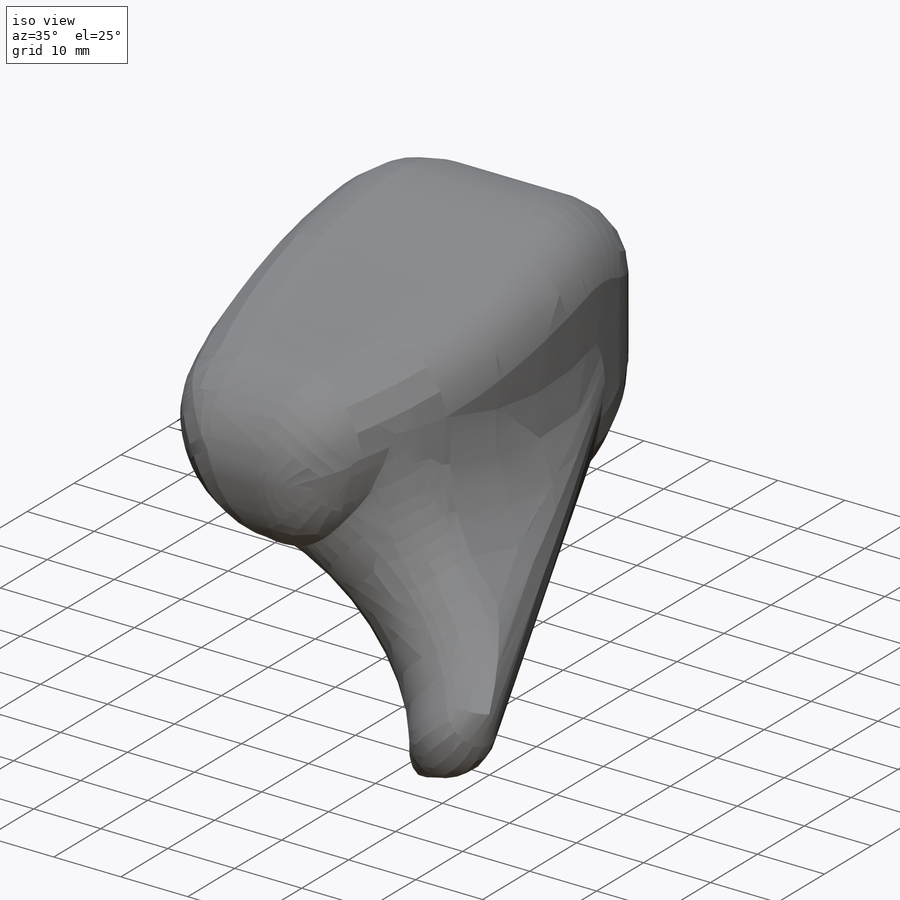
[diagram: iso view]
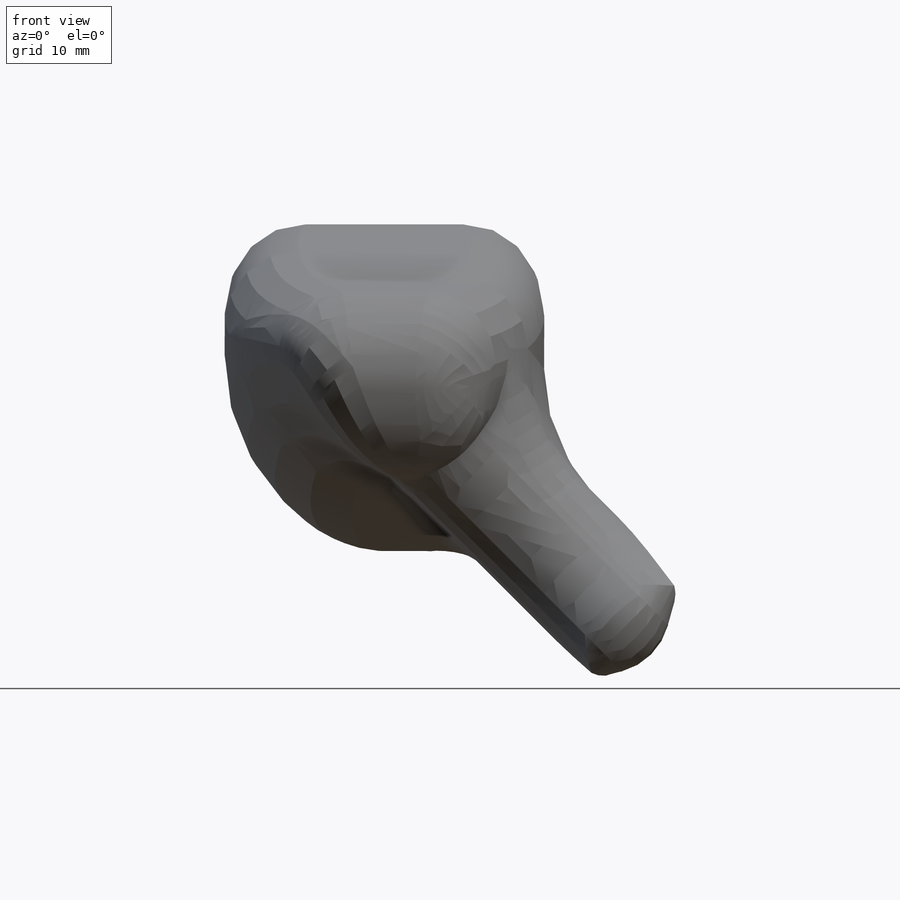
[diagram: front view]
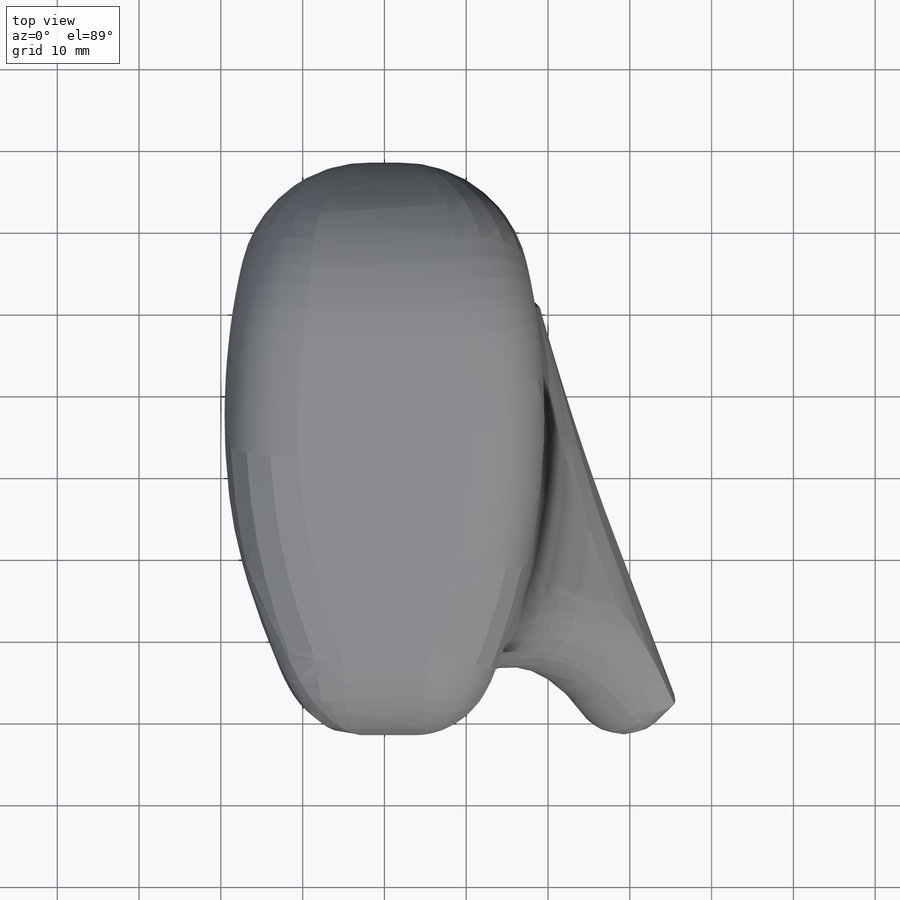
[diagram: top view]
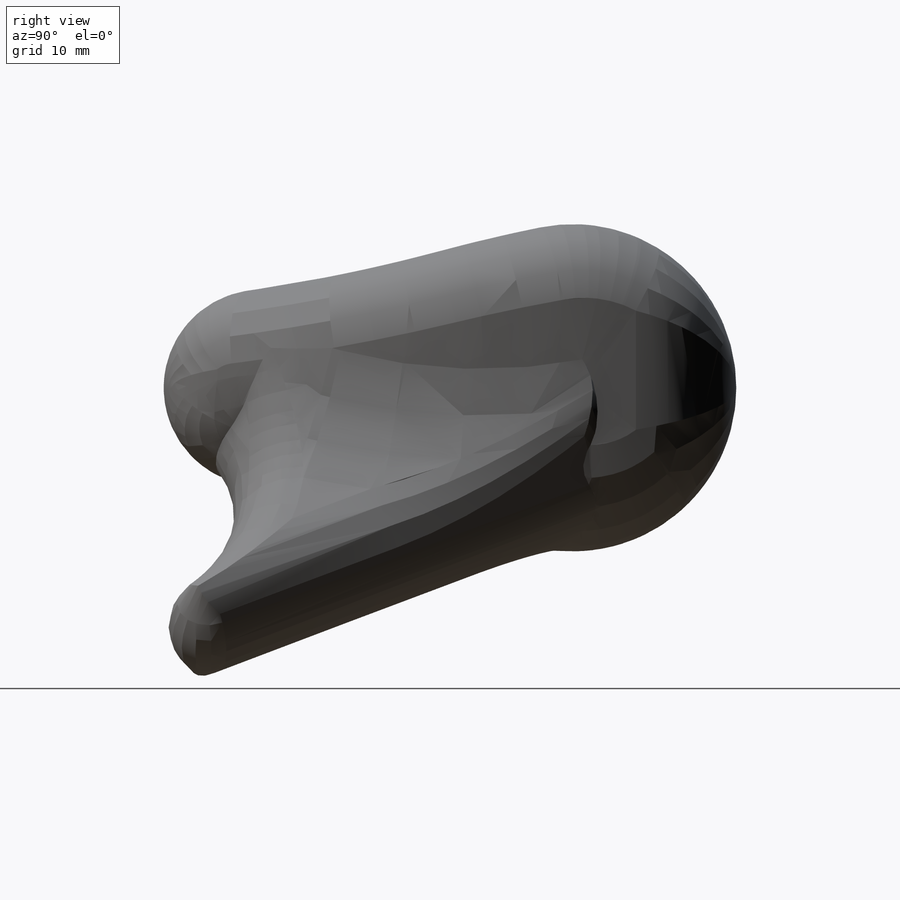
[diagram: right view]
SOLIDWORKS PART (.sldprt)
format: sldprt  version: not decoded by parser v0  size: 441,344 bytes
history: native  units: mm
features: fillet x16, sketch x5, plane x4, cut_extrude x3, extrude x2, material x1 (+10 scaffold rows collapsed)
feature tree (41):
  scaffold x10  (default folders/planes/origin — collapsed)
  material  "Material <not specified>"
  plane  "Vorne"
  plane  "Oben"
  plane  "Rechts"
  plane  "Ebene1"
  sketch  "Skizze2"  dims[c1.D1=22.0mm c1.D2=19.0mm c1.D3=15.0mm c1.D4=65.0mm c1.D5=85.0mm c1.D6=40.0mm c1.D7=24.0mm c2.D1=80.0mm c2.D2=19.0mm c3.D1=200.0mm c3.D3=200.0mm c3.D5=160.0mm c3.D8=180.0mm c4.D3=54.0mm c4.D2=70.0mm c4.D4=52.0mm]
  extrude  "Basis-Gundkörper"  Depth=40mm
  sketch  "Skizze3"  dims[c1.D6=23.5mm c1.D7=57.75mm c1.D8=71.5mm c2.D6=~83.099287mm c2.D1=23.0mm c2.D2=~10.147907mm c2.D3=~77.101034mm c2.D4=2.0mm c2.D5=~19.427778mm c3.D1=~5.101034mm c3.D7=40.0mm c3.D6=~27.509738mm]
  cut_extrude  "Seitlische Verjüngung rechts"  [1 undecoded]
  sketch  "Skizze5"  dims[c1.D1=3.0mm c1.D2=3.0mm c1.D3=7.5mm c1.D4=9.5mm c1.D5=9.5mm c1.D6=7.5mm c2.D3=9.5mm c2.D6=9.5mm c2.D4=11.0mm c2.D5=3.0mm c3.D3=3.0mm c3.D6=3.0mm c3.D4=3.0mm c3.D7=5.0mm c3.D8=1.0mm c4.D3=5.5mm c4.D4=6.5mm c4.D5=6.5mm c4.D6=5.5mm c5.D3=8.0mm c5.D6=8.0mm c5.D4=8.0mm c5.D5=8.0mm c6.D3=8.0mm c6.D6=12.0mm c6.D4=~7.887436mm]
  cut_extrude  "Gelenke"  Depth=10mm
  sketch  "Skizze6"  dims[c1.D1=5.0mm c1.D5=1.0mm c1.D2=~10.186124mm c2.D2=40.0deg c2.D3=~10.858013mm c3.D3=30.0deg c3.D4=~9.805562mm c4.D4=10.0deg]
  cut_extrude  "Schnitt-Linear austragen1"  Depth=10mm
  fillet  "Verrundung2"  Radius=10mm
  fillet  "Verrundung12"  Radius=9mm
  fillet  "Verrundung18"  Radius=13mm
  fillet  "Verrundung20"  Radius=21mm
  fillet  "Verrundung21"  Radius=9mm
  fillet  "Verrundung25"  Radius=8mm
  fillet  "Verrundung27"  Radius=10mm
  fillet  "Verrundung28"  Radius=10mm
  sketch  "Skizze7"
  extrude  "Linear austragen1"  Depth=9mm
  fillet  "Verrundung51"  Radius=12mm
  fillet  "Verrundung56"  Radius=22mm
  fillet  "Verrundung58"  Radius=8mm
  fillet  "Verrundung59"  Radius=8mm
  fillet  "Verrundung64"  Radius=8mm
  fillet  "Verrundung69"  Radius=6mm
  fillet  "Verrundung70"  Radius=6mm
  fillet  "Verrundung71"  Radius=6mm
decode coverage: 24 of 26 modeling features carry decoded parameters
note: ~ marks probable driven/reference dimensions
note: 1 parameter value undecoded
note: suppression state not decoded; provenance and decode notes live in map.json
